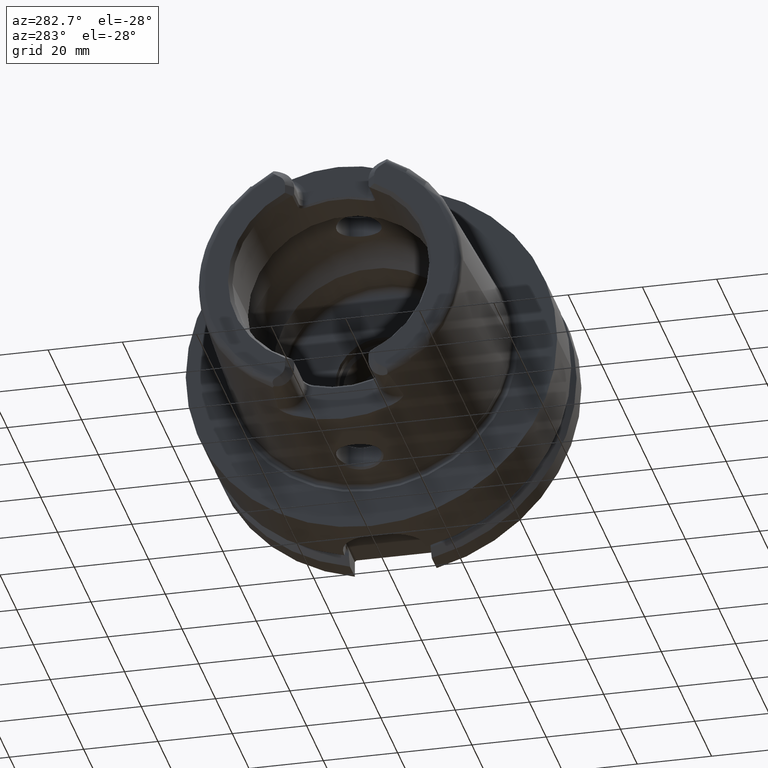
[diagram: clean part render]
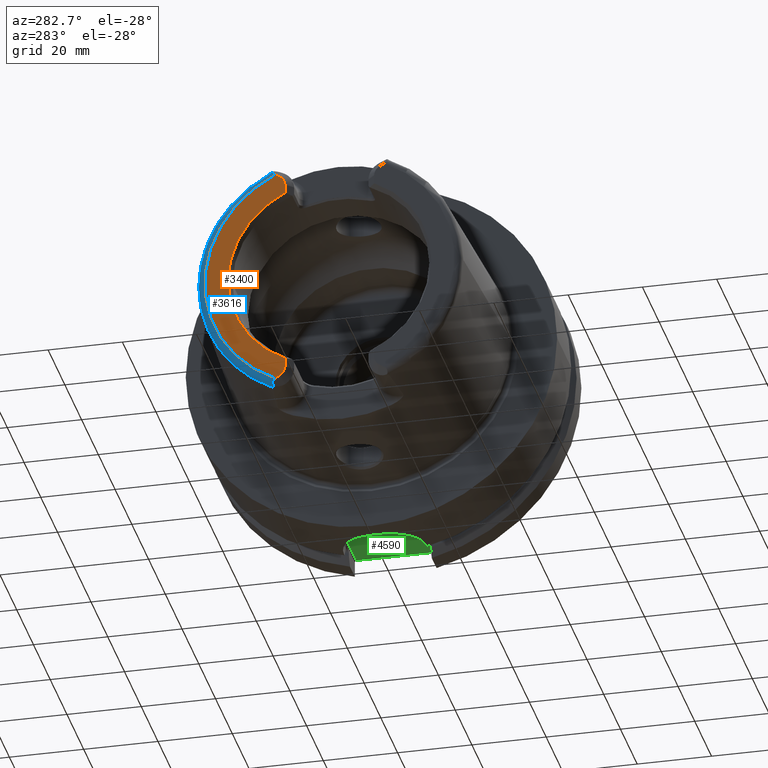
[diagram: same view with three faces highlighted in distinct colors, each labeled with its STEP entity id]
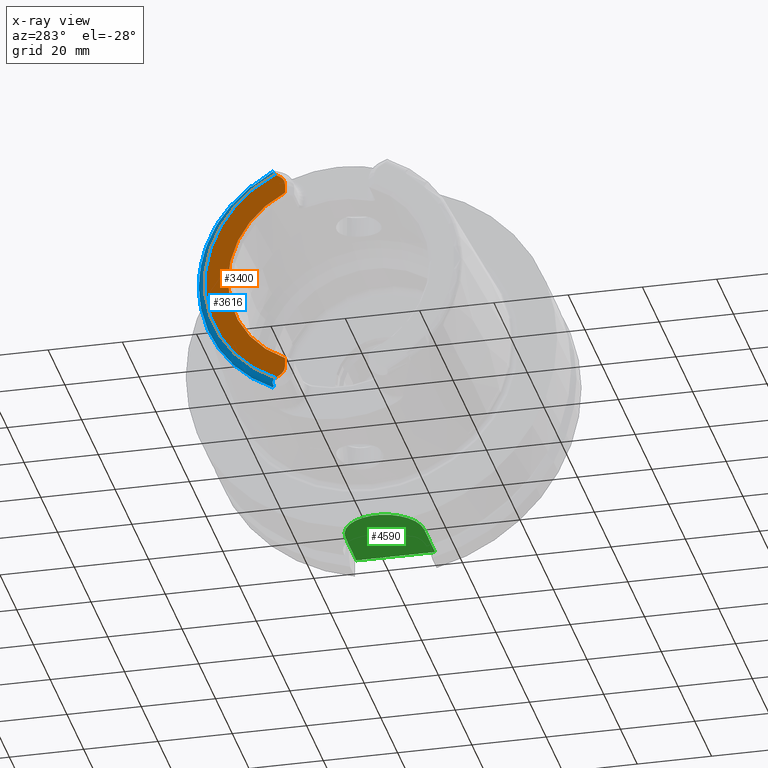
[diagram: x-ray of the same camera — body ghosted, the three highlighted faces saturated]
A machine part, auxiliary view with three faces highlighted in distinct colors.
The next image is the same camera in x-ray (body ghosted, the three faces saturated) — at least one of them is partly hidden behind the body in this view.
Their STEP definitions:

[orange] entity #3400 — the highlighted planar face has unit normal (1, 0, 0).
#100=DIRECTION('',(0.E0,0.E0,1.E0));
#101=VECTOR('',#100,2.370180025047E0);
#102=CARTESIAN_POINT('',(-5.E1,1.201E1,-2.696E1));
#103=LINE('',#102,#101);
#104=CARTESIAN_POINT('',(-5.E1,1.501E1,-2.696E1));
#105=DIRECTION('',(1.E0,0.E0,0.E0));
#106=DIRECTION('',(0.E0,-1.E0,0.E0));
#107=AXIS2_PLACEMENT_3D('',#104,#105,#106);
#109=DIRECTION('',(0.E0,-8.533905854017E-1,5.212720103245E-1));
#110=VECTOR('',#109,1.392150953463E0);
#111=CARTESIAN_POINT('',(-5.E1,1.463423248617E1,-3.024586108239E1));
#112=LINE('',#111,#110);
#113=DIRECTION('',(0.E0,-8.533905854017E-1,-5.212720103245E-1));
#114=VECTOR('',#113,1.392150953463E0);
#115=CARTESIAN_POINT('',(-5.E1,1.463423248617E1,3.024586108239E1));
#116=LINE('',#115,#114);
#117=CARTESIAN_POINT('',(-5.E1,1.501E1,2.696E1));
#118=DIRECTION('',(-1.E0,0.E0,0.E0));
#119=DIRECTION('',(0.E0,-1.E0,0.E0));
#120=AXIS2_PLACEMENT_3D('',#117,#118,#119);
#122=DIRECTION('',(0.E0,0.E0,1.E0));
#123=VECTOR('',#122,2.370180025047E0);
#124=CARTESIAN_POINT('',(-5.E1,1.201E1,2.458981997495E1));
#125=LINE('',#124,#123);
#157=CARTESIAN_POINT('',(-5.E1,0.E0,0.E0));
#158=DIRECTION('',(1.E0,0.E0,0.E0));
#159=DIRECTION('',(0.E0,4.388653384185E-1,-8.985528447091E-1));
#160=AXIS2_PLACEMENT_3D('',#157,#158,#159);
#340=CARTESIAN_POINT('',(-5.E1,0.E0,0.E0));
#341=DIRECTION('',(-1.E0,0.E0,0.E0));
#342=DIRECTION('',(0.E0,4.355401503799E-1,9.001693048572E-1));
#343=AXIS2_PLACEMENT_3D('',#340,#341,#342);
#2927=CARTESIAN_POINT('',(-5.E1,1.201E1,2.458981997495E1));
#2928=CARTESIAN_POINT('',(-5.E1,1.201E1,2.696E1));
#2929=VERTEX_POINT('',#2927);
#2930=VERTEX_POINT('',#2928);
#2931=CARTESIAN_POINT('',(-5.E1,1.344618396903E1,2.952017175621E1));
#2932=VERTEX_POINT('',#2931);
#2933=CARTESIAN_POINT('',(-5.E1,1.463423248617E1,3.024586108239E1));
#2934=VERTEX_POINT('',#2933);
#3018=CARTESIAN_POINT('',(-5.E1,1.201E1,-2.696E1));
#3019=CARTESIAN_POINT('',(-5.E1,1.201E1,-2.458981997495E1));
#3020=VERTEX_POINT('',#3018);
#3021=VERTEX_POINT('',#3019);
#3022=CARTESIAN_POINT('',(-5.E1,1.344618396903E1,-2.952017175621E1));
#3023=VERTEX_POINT('',#3022);
#3024=CARTESIAN_POINT('',(-5.E1,1.463423248617E1,-3.024586108239E1));
#3025=VERTEX_POINT('',#3024);
#3377=CARTESIAN_POINT('',(-5.E1,0.E0,0.E0));
#3378=DIRECTION('',(1.E0,0.E0,0.E0));
#3379=DIRECTION('',(0.E0,-1.E0,0.E0));
#3380=AXIS2_PLACEMENT_3D('',#3377,#3378,#3379);
#3381=PLANE('',#3380);
#3383=ORIENTED_EDGE('',*,*,#3382,.F.);
#3385=ORIENTED_EDGE('',*,*,#3384,.T.);
#3387=ORIENTED_EDGE('',*,*,#3386,.F.);
#3389=ORIENTED_EDGE('',*,*,#3388,.F.);
#3391=ORIENTED_EDGE('',*,*,#3390,.T.);
#3393=ORIENTED_EDGE('',*,*,#3392,.F.);
#3395=ORIENTED_EDGE('',*,*,#3394,.F.);
#3397=ORIENTED_EDGE('',*,*,#3396,.F.);
#3398=EDGE_LOOP('',(#3383,#3385,#3387,#3389,#3391,#3393,#3395,#3397));
#3399=FACE_OUTER_BOUND('',#3398,.F.);
#3400=ADVANCED_FACE('',(#3399),#3381,.F.);
#108=CIRCLE('',#107,3.E0);
#121=CIRCLE('',#120,3.E0);
#161=CIRCLE('',#160,2.736602540378E1);
#344=CIRCLE('',#343,3.360019156306E1);
#3382=EDGE_CURVE('',#3020,#3021,#103,.T.);
#3384=EDGE_CURVE('',#3020,#3023,#108,.T.);
#3386=EDGE_CURVE('',#3025,#3023,#112,.T.);
#3388=EDGE_CURVE('',#2934,#3025,#344,.T.);
#3390=EDGE_CURVE('',#2934,#2932,#116,.T.);
#3392=EDGE_CURVE('',#2930,#2932,#121,.T.);
#3394=EDGE_CURVE('',#2929,#2930,#125,.T.);
#3396=EDGE_CURVE('',#3021,#2929,#161,.T.);

[blue] entity #3616 — the highlighted toroidal blend (fillet) surface has major radius 33.6002 mm and minor (blend) radius 2 mm.
#284=CARTESIAN_POINT('',(-4.885415732441E1,1.524233599545E1,-3.196E1));
#285=CARTESIAN_POINT('',(-4.892042682917E1,1.528184575722E1,-3.190647917074E1));
#286=CARTESIAN_POINT('',(-4.904907337055E1,1.534921107261E1,-3.179688001462E1));
#287=CARTESIAN_POINT('',(-4.923089295558E1,1.541590864687E1,-3.162456500561E1));
#288=CARTESIAN_POINT('',(-4.939996141290E1,1.544678596655E1,-3.144531182725E1));
#289=CARTESIAN_POINT('',(-4.955291678113E1,1.544062482823E1,-3.126231590503E1));
#290=CARTESIAN_POINT('',(-4.968961398491E1,1.539492909283E1,-3.107422253444E1));
#291=CARTESIAN_POINT('',(-4.980222556701E1,1.531137807264E1,-3.089122966690E1));
#292=CARTESIAN_POINT('',(-4.98920182E1,1.518913217588E1,-3.071134017670E1));
#293=CARTESIAN_POINT('',(-4.995490319930E1,1.503380242251E1,-3.054277251898E1));
#294=CARTESIAN_POINT('',(-4.999193874033E1,1.484926520259E1,-3.038665452223E1));
#295=CARTESIAN_POINT('',(-5.E1,1.470886141623E1,-3.029144627288E1));
#296=CARTESIAN_POINT('',(-5.E1,1.463423248617E1,-3.024586108239E1));
#298=CARTESIAN_POINT('',(-4.810007448473E1,1.567653238626E1,-3.196E1));
#299=CARTESIAN_POINT('',(-4.814854926161E1,1.567101764283E1,-3.196E1));
#300=CARTESIAN_POINT('',(-4.824699718528E1,1.565188578280E1,-3.196E1));
#301=CARTESIAN_POINT('',(-4.840101233225E1,1.559467216883E1,-3.196E1));
#302=CARTESIAN_POINT('',(-4.855439166438E1,1.550852477714E1,-3.196E1));
#303=CARTESIAN_POINT('',(-4.870516089830E1,1.539385143023E1,-3.196E1));
#304=CARTESIAN_POINT('',(-4.880487439669E1,1.529641023181E1,-3.196E1));
#305=CARTESIAN_POINT('',(-4.885415732441E1,1.524233599545E1,-3.196E1));
#307=CARTESIAN_POINT('',(-4.810007448473E1,0.E0,0.E0));
#308=DIRECTION('',(-1.E0,0.E0,0.E0));
#309=DIRECTION('',(0.E0,1.E0,0.E0));
#310=AXIS2_PLACEMENT_3D('',#307,#308,#309);
#312=CARTESIAN_POINT('',(-4.810007448473E1,0.E0,0.E0));
#313=DIRECTION('',(1.E0,0.E0,0.E0));
#314=DIRECTION('',(0.E0,1.E0,0.E0));
#315=AXIS2_PLACEMENT_3D('',#312,#313,#314);
#317=CARTESIAN_POINT('',(-4.885415732441E1,1.524233599545E1,3.196E1));
#318=CARTESIAN_POINT('',(-4.880489671373E1,1.529638574510E1,3.196E1));
#319=CARTESIAN_POINT('',(-4.870522589790E1,1.539380534287E1,3.196E1));
#320=CARTESIAN_POINT('',(-4.855425205604E1,1.550861743949E1,3.196E1));
#321=CARTESIAN_POINT('',(-4.840102922174E1,1.559466231398E1,3.196E1));
#322=CARTESIAN_POINT('',(-4.824685927015E1,1.565193052527E1,3.196E1));
#323=CARTESIAN_POINT('',(-4.814849310230E1,1.567102403180E1,3.196E1));
#324=CARTESIAN_POINT('',(-4.810007448473E1,1.567653238626E1,3.196E1));
#326=CARTESIAN_POINT('',(-5.E1,1.463423248617E1,3.024586108239E1));
#327=CARTESIAN_POINT('',(-5.E1,1.470887052533E1,3.029145183695E1));
#328=CARTESIAN_POINT('',(-4.999193668301E1,1.484929336697E1,3.038667413649E1));
#329=CARTESIAN_POINT('',(-4.995488930905E1,1.503385996795E1,3.054282394569E1));
#330=CARTESIAN_POINT('',(-4.989197500232E1,1.518921649175E1,3.071144229779E1));
#331=CARTESIAN_POINT('',(-4.980215470263E1,1.531145218524E1,3.089135797532E1));
#332=CARTESIAN_POINT('',(-4.968951481558E1,1.539498007461E1,3.107436988164E1));
#333=CARTESIAN_POINT('',(-4.955280820452E1,1.544064650585E1,3.126245637594E1));
#334=CARTESIAN_POINT('',(-4.939976008409E1,1.544677878772E1,3.144554335861E1));
#335=CARTESIAN_POINT('',(-4.923056226109E1,1.541582067272E1,3.162489877544E1));
#336=CARTESIAN_POINT('',(-4.904873698401E1,1.534905210810E1,3.179717709171E1));
#337=CARTESIAN_POINT('',(-4.892028850269E1,1.528176328722E1,3.190659088650E1));
#338=CARTESIAN_POINT('',(-4.885415732441E1,1.524233599545E1,3.196E1));
#340=CARTESIAN_POINT('',(-5.E1,0.E0,0.E0));
#341=DIRECTION('',(-1.E0,0.E0,0.E0));
#342=DIRECTION('',(0.E0,4.355401503799E-1,9.001693048572E-1));
#343=AXIS2_PLACEMENT_3D('',#340,#341,#342);
#2861=CARTESIAN_POINT('',(-4.810007448473E1,3.559768626831E1,0.E0));
#2862=VERTEX_POINT('',#2861);
#2901=CARTESIAN_POINT('',(-4.810007448473E1,1.567653238626E1,3.196E1));
#2902=VERTEX_POINT('',#2901);
#2933=CARTESIAN_POINT('',(-5.E1,1.463423248617E1,3.024586108239E1));
#2934=VERTEX_POINT('',#2933);
#2935=VERTEX_POINT('',#338);
#2981=CARTESIAN_POINT('',(-4.810007448473E1,1.567653238626E1,-3.196E1));
#2982=VERTEX_POINT('',#2981);
#3024=CARTESIAN_POINT('',(-5.E1,1.463423248617E1,-3.024586108239E1));
#3025=VERTEX_POINT('',#3024);
#3026=VERTEX_POINT('',#284);
#3598=CARTESIAN_POINT('',(-4.8E1,0.E0,0.E0));
#3599=DIRECTION('',(1.E0,0.E0,0.E0));
#3600=DIRECTION('',(0.E0,-1.E0,0.E0));
#3601=AXIS2_PLACEMENT_3D('',#3598,#3599,#3600);
#3602=TOROIDAL_SURFACE('',#3601,3.360019156306E1,2.E0);
#3604=ORIENTED_EDGE('',*,*,#3603,.F.);
#3606=ORIENTED_EDGE('',*,*,#3605,.F.);
#3608=ORIENTED_EDGE('',*,*,#3607,.F.);
#3609=ORIENTED_EDGE('',*,*,#3324,.T.);
#3611=ORIENTED_EDGE('',*,*,#3610,.F.);
#3612=ORIENTED_EDGE('',*,*,#3589,.F.);
#3613=ORIENTED_EDGE('',*,*,#3388,.T.);
#3614=EDGE_LOOP('',(#3604,#3606,#3608,#3609,#3611,#3612,#3613));
#3615=FACE_OUTER_BOUND('',#3614,.F.);
#3616=ADVANCED_FACE('',(#3615),#3602,.T.);
#297=B_SPLINE_CURVE_WITH_KNOTS('',3,(#284,#285,#286,#287,#288,#289,#290,#291,
#292,#293,#294,#295,#296),.UNSPECIFIED.,.F.,.F.,(4,1,1,1,1,1,1,1,1,1,4),(0.E0,
1.E-1,2.E-1,3.E-1,4.E-1,5.E-1,6.E-1,7.E-1,8.E-1,9.E-1,1.E0),.UNSPECIFIED.);
#306=B_SPLINE_CURVE_WITH_KNOTS('',3,(#298,#299,#300,#301,#302,#303,#304,#305),
.UNSPECIFIED.,.F.,.F.,(4,1,1,1,1,4),(0.E0,2.E-1,4.E-1,6.E-1,8.E-1,1.E0),
.UNSPECIFIED.);
#311=CIRCLE('',#310,3.559768626831E1);
#316=CIRCLE('',#315,3.559768626831E1);
#325=B_SPLINE_CURVE_WITH_KNOTS('',3,(#317,#318,#319,#320,#321,#322,#323,#324),
.UNSPECIFIED.,.F.,.F.,(4,1,1,1,1,4),(0.E0,2.E-1,4.E-1,6.E-1,8.E-1,1.E0),
.UNSPECIFIED.);
#339=B_SPLINE_CURVE_WITH_KNOTS('',3,(#326,#327,#328,#329,#330,#331,#332,#333,
#334,#335,#336,#337,#338),.UNSPECIFIED.,.F.,.F.,(4,1,1,1,1,1,1,1,1,1,4),(0.E0,
1.E-1,2.E-1,3.E-1,4.E-1,5.E-1,6.E-1,7.E-1,8.E-1,9.E-1,1.E0),.UNSPECIFIED.);
#344=CIRCLE('',#343,3.360019156306E1);
#3324=EDGE_CURVE('',#2862,#2902,#316,.T.);
#3388=EDGE_CURVE('',#2934,#3025,#344,.T.);
#3589=EDGE_CURVE('',#2934,#2935,#339,.T.);
#3603=EDGE_CURVE('',#3026,#3025,#297,.T.);
#3605=EDGE_CURVE('',#2982,#3026,#306,.T.);
#3607=EDGE_CURVE('',#2862,#2982,#311,.T.);
#3610=EDGE_CURVE('',#2935,#2902,#325,.T.);

[green] entity #4590 — the highlighted planar face has unit normal (0, 0, -1).
#1083=DIRECTION('',(0.E0,-1.E0,0.E0));
#1084=VECTOR('',#1083,2.12E1);
#1085=CARTESIAN_POINT('',(2.9E1,1.06E1,-4.4E1));
#1086=LINE('',#1085,#1084);
#1267=DIRECTION('',(1.E0,3.248915666844E-10,-3.259565609311E-10));
#1268=VECTOR('',#1267,1.299999999828E1);
#1269=CARTESIAN_POINT('',(1.600000000172E1,-1.060000000422E1,
-4.399999999576E1));
#1270=LINE('',#1269,#1268);
#1271=DIRECTION('',(-1.E0,3.244620982657E-10,3.263850728660E-10));
#1272=VECTOR('',#1271,1.299999999796E1);
#1273=CARTESIAN_POINT('',(2.9E1,1.06E1,-4.4E1));
#1274=LINE('',#1273,#1272);
#1275=CARTESIAN_POINT('',(1.6E1,0.E0,-4.399999965713E1));
#1276=DIRECTION('',(0.E0,0.E0,1.E0));
#1277=DIRECTION('',(0.E0,1.E0,0.E0));
#1278=AXIS2_PLACEMENT_3D('',#1275,#1276,#1277);
#3098=CARTESIAN_POINT('',(2.9E1,1.06E1,-4.4E1));
#3100=VERTEX_POINT('',#3098);
#3103=CARTESIAN_POINT('',(2.9E1,-1.06E1,-4.4E1));
#3105=VERTEX_POINT('',#3103);
#3178=CARTESIAN_POINT('',(1.600000000172E1,-1.060000000422E1,
-4.399999999576E1));
#3179=VERTEX_POINT('',#3178);
#3184=CARTESIAN_POINT('',(1.600000000204E1,1.060000000422E1,-4.399999999576E1));
#3185=VERTEX_POINT('',#3184);
#4579=CARTESIAN_POINT('',(0.E0,0.E0,-4.4E1));
#4580=DIRECTION('',(0.E0,0.E0,-1.E0));
#4581=DIRECTION('',(1.E0,0.E0,0.E0));
#4582=AXIS2_PLACEMENT_3D('',#4579,#4580,#4581);
#4583=PLANE('',#4582);
#4584=ORIENTED_EDGE('',*,*,#4571,.T.);
#4585=ORIENTED_EDGE('',*,*,#4392,.F.);
#4586=ORIENTED_EDGE('',*,*,#4545,.T.);
#4587=ORIENTED_EDGE('',*,*,#4557,.T.);
#4588=EDGE_LOOP('',(#4584,#4585,#4586,#4587));
#4589=FACE_OUTER_BOUND('',#4588,.F.);
#4590=ADVANCED_FACE('',(#4589),#4583,.T.);
#1279=CIRCLE('',#1278,1.059999968251E1);
#4392=EDGE_CURVE('',#3100,#3105,#1086,.T.);
#4545=EDGE_CURVE('',#3100,#3185,#1274,.T.);
#4557=EDGE_CURVE('',#3185,#3179,#1279,.T.);
#4571=EDGE_CURVE('',#3179,#3105,#1270,.T.);